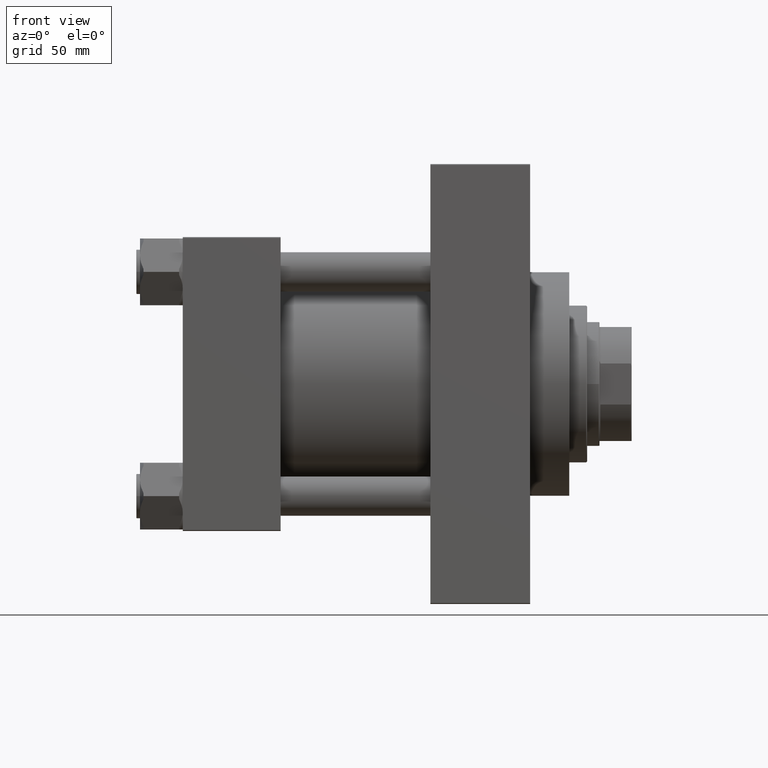
[diagram: clean part render]
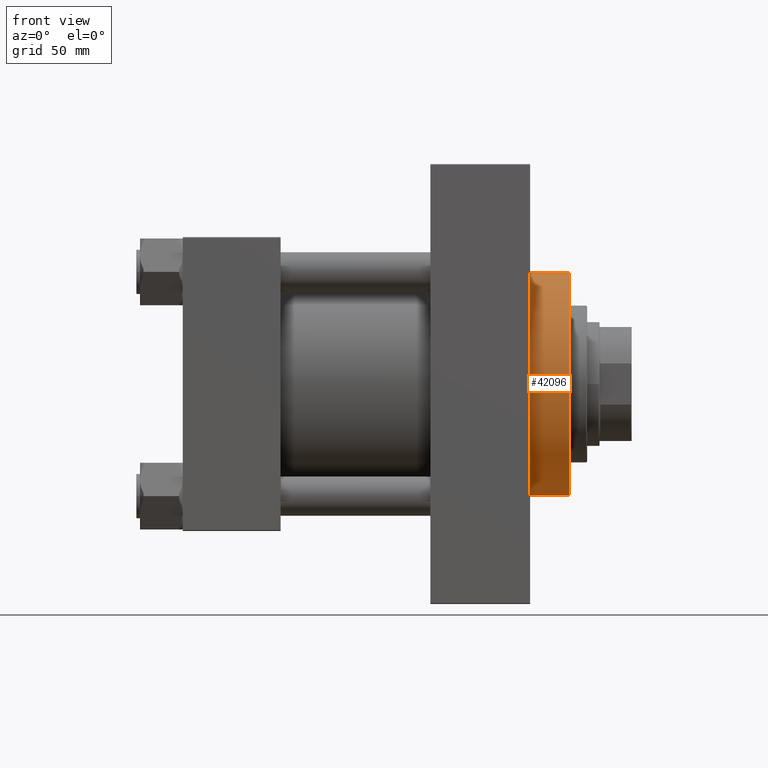
[diagram: same view with one face highlighted and labeled with its STEP entity id]
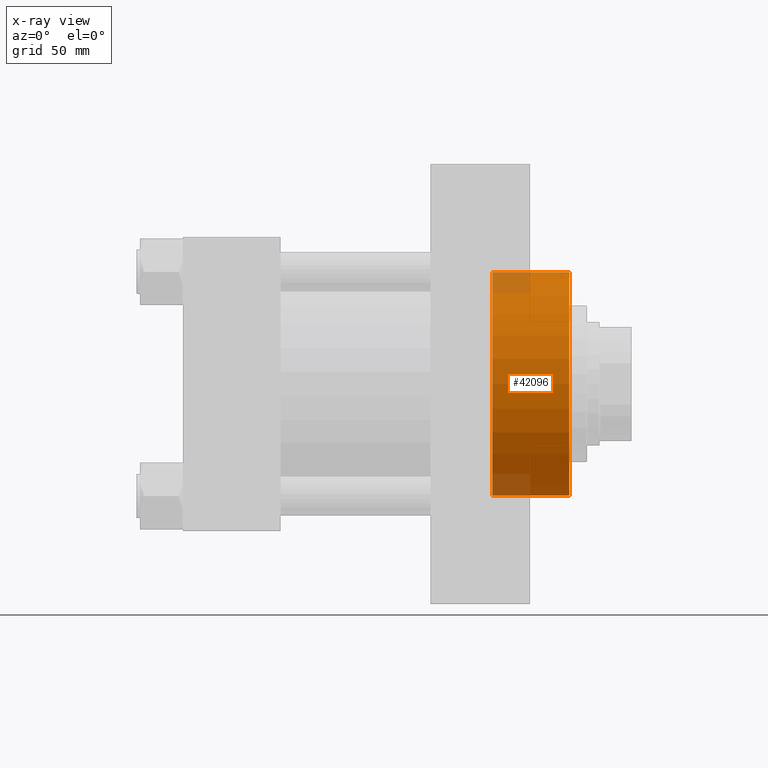
[diagram: x-ray of the same camera — body ghosted, the highlighted face saturated]
A machine part, front view. The second image highlights one B-rep face of the part: STEP entity #42096.
The next image is the same camera in x-ray: the body ghosted, the highlighted face saturated — about 9% of this face is hidden behind the body in this view.
In plain terms, the highlighted cylindrical surface (partial cylindrical patch) has radius 62.75 mm, axis along (-1, 0, 0).
Its self-contained STEP definition (entity closure, byte-faithful):
#1371 = AXIS2_PLACEMENT_3D ( 'NONE', #3768, #49036, #41432 ) ;
#2395 = VERTEX_POINT ( 'NONE', #31966 ) ;
#3001 = CARTESIAN_POINT ( 'NONE',  ( 0.000000000000000000, 0.000000000000000000, 43.25999999999999801 ) ) ;
#3768 = CARTESIAN_POINT ( 'NONE',  ( 0.000000000000000000, 0.000000000000000000, 43.25999999999999801 ) ) ;
#4569 = CARTESIAN_POINT ( 'NONE',  ( 62.75000000000000000, 7.684658664649641591E-15, 43.25999999999999801 ) ) ;
#6712 = DIRECTION ( 'NONE',  ( 1.000000000000000000, 0.000000000000000000, 0.000000000000000000 ) ) ;
#7266 = EDGE_CURVE ( 'NONE', #2395, #19267, #18614, .T. ) ;
#7942 = EDGE_CURVE ( 'NONE', #28070, #43156, #27297, .T. ) ;
#10597 = DIRECTION ( 'NONE',  ( -1.000000000000000000, 0.000000000000000000, 0.000000000000000000 ) ) ;
#11872 = ORIENTED_EDGE ( 'NONE', *, *, #7266, .F. ) ;
#13112 = CIRCLE ( 'NONE', #43641, 62.75000000000000000 ) ;
#13118 = CARTESIAN_POINT ( 'NONE',  ( 0.000000000000000000, 0.000000000000000000, 0.000000000000000000 ) ) ;
#14125 = CYLINDRICAL_SURFACE ( 'NONE', #30481, 62.75000000000000000 ) ;
#15208 = EDGE_CURVE ( 'NONE', #43156, #19267, #13112, .T. ) ;
#17559 = CIRCLE ( 'NONE', #1371, 62.75000000000000000 ) ;
#18614 = LINE ( 'NONE', #26183, #28034 ) ;
#19267 = VERTEX_POINT ( 'NONE', #29799 ) ;
#21596 = ORIENTED_EDGE ( 'NONE', *, *, #15208, .T. ) ;
#21873 = DIRECTION ( 'NONE',  ( 0.000000000000000000, 0.000000000000000000, 1.000000000000000000 ) ) ;
#22306 = VECTOR ( 'NONE', #42199, 1000.000000000000000 ) ;
#26183 = CARTESIAN_POINT ( 'NONE',  ( -62.75000000000000000, 0.000000000000000000, 43.25999999999999801 ) ) ;
#27297 = LINE ( 'NONE', #31586, #22306 ) ;
#28034 = VECTOR ( 'NONE', #45875, 1000.000000000000000 ) ;
#28070 = VERTEX_POINT ( 'NONE', #4569 ) ;
#29799 = CARTESIAN_POINT ( 'NONE',  ( -62.75000000000000000, 0.000000000000000000, 0.000000000000000000 ) ) ;
#30481 = AXIS2_PLACEMENT_3D ( 'NONE', #3001, #45196, #10597 ) ;
#30807 = ORIENTED_EDGE ( 'NONE', *, *, #45327, .F. ) ;
#31586 = CARTESIAN_POINT ( 'NONE',  ( 62.75000000000000000, 7.684658664649641591E-15, 43.25999999999999801 ) ) ;
#31966 = CARTESIAN_POINT ( 'NONE',  ( -62.75000000000000000, 0.000000000000000000, 43.25999999999999801 ) ) ;
#33576 = FACE_OUTER_BOUND ( 'NONE', #49702, .T. ) ;
#36556 = CARTESIAN_POINT ( 'NONE',  ( 62.75000000000000000, 7.684658664649641591E-15, 0.000000000000000000 ) ) ;
#41432 = DIRECTION ( 'NONE',  ( 1.000000000000000000, 0.000000000000000000, 0.000000000000000000 ) ) ;
#42096 = ADVANCED_FACE ( 'NONE', ( #33576 ), #14125, .T. ) ;
#42199 = DIRECTION ( 'NONE',  ( -0.000000000000000000, -0.000000000000000000, -1.000000000000000000 ) ) ;
#43156 = VERTEX_POINT ( 'NONE', #36556 ) ;
#43641 = AXIS2_PLACEMENT_3D ( 'NONE', #13118, #21873, #6712 ) ;
#44591 = ORIENTED_EDGE ( 'NONE', *, *, #7942, .T. ) ;
#45196 = DIRECTION ( 'NONE',  ( -0.000000000000000000, -0.000000000000000000, -1.000000000000000000 ) ) ;
#45327 = EDGE_CURVE ( 'NONE', #28070, #2395, #17559, .T. ) ;
#45875 = DIRECTION ( 'NONE',  ( -0.000000000000000000, -0.000000000000000000, -1.000000000000000000 ) ) ;
#49036 = DIRECTION ( 'NONE',  ( 0.000000000000000000, 0.000000000000000000, 1.000000000000000000 ) ) ;
#49702 = EDGE_LOOP ( 'NONE', ( #30807, #44591, #21596, #11872 ) ) ;